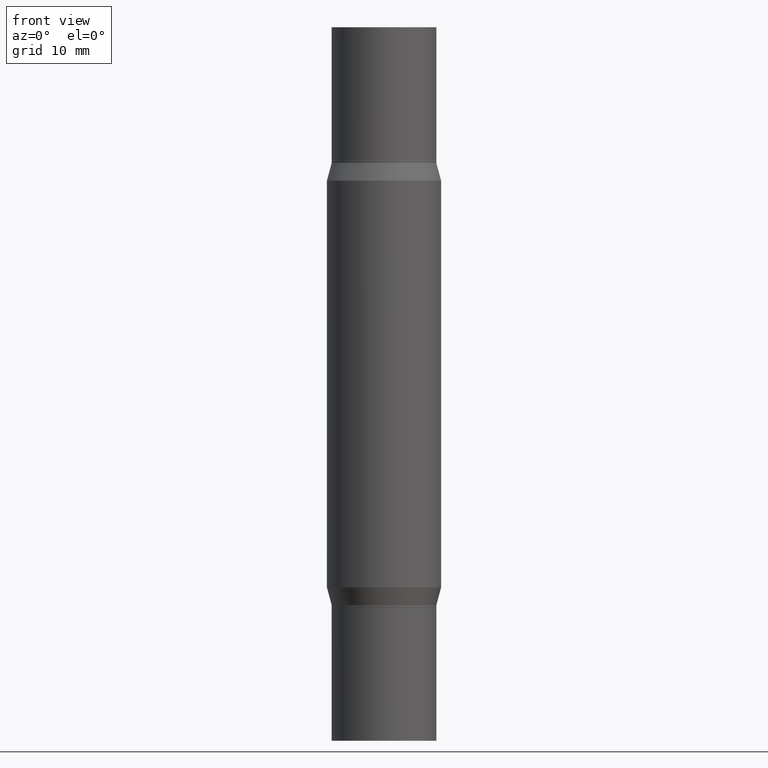
[diagram: clean part render]
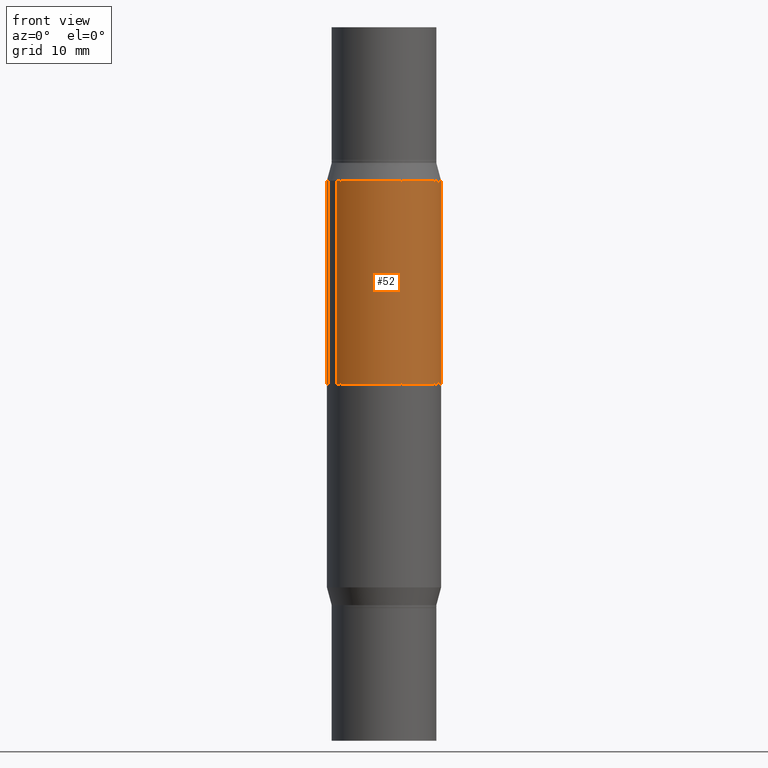
[diagram: same view with one face highlighted and labeled with its STEP entity id]
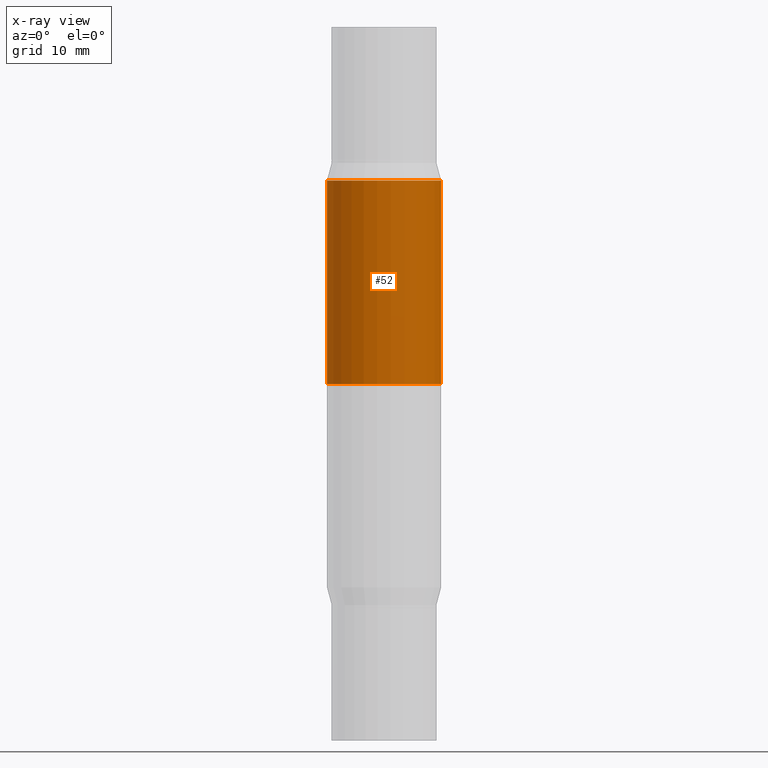
[diagram: x-ray of the same camera — body ghosted, the highlighted face saturated]
A machine part, front view. The second image highlights one B-rep face of the part: STEP entity #52.
The next image is the same camera in x-ray: the body ghosted, the highlighted face saturated — about 0% of this face is hidden behind the body in this view.
In plain terms, the highlighted cylindrical surface (partial cylindrical patch) has radius 5.9995 mm, axis along (-0, -0, -1).
Its self-contained STEP definition (entity closure, byte-faithful):
#18 = LINE ( 'NONE', #337, #890 ) ;
#23 = CARTESIAN_POINT ( 'NONE',  ( 0.2361999999999999933, -3.864569632810967459E-15, -0.6345347983687280591 ) ) ;
#52 = ADVANCED_FACE ( 'NONE', ( #822 ), #140, .T. ) ;
#71 = DIRECTION ( 'NONE',  ( -2.445468806185136597E-29, -3.491805094961124077E-15, -1.000000000000000000 ) ) ;
#140 = CYLINDRICAL_SURFACE ( 'NONE', #756, 0.2361999999999999933 ) ;
#155 = CARTESIAN_POINT ( 'NONE',  ( 0.000000000000000000, -1.031012409086862149E-14, -2.952799999999998981 ) ) ;
#158 = EDGE_CURVE ( 'NONE', #505, #570, #892, .T. ) ;
#165 = AXIS2_PLACEMENT_3D ( 'NONE', #919, #913, #179 ) ;
#179 = DIRECTION ( 'NONE',  ( 0.000000000000000000, 1.000000000000000000, -3.469747663417777397E-15 ) ) ;
#214 = CARTESIAN_POINT ( 'NONE',  ( 5.669245235053768865E-29, -2.215193848341470539E-15, -0.6345347983687280591 ) ) ;
#216 = VECTOR ( 'NONE', #678, 39.37007874015748143 ) ;
#282 = ORIENTED_EDGE ( 'NONE', *, *, #450, .F. ) ;
#314 = CARTESIAN_POINT ( 'NONE',  ( -0.2361999999999999933, -8.689674463794984831E-15, -2.952799999999998981 ) ) ;
#337 = CARTESIAN_POINT ( 'NONE',  ( 0.2361999999999999933, -1.195949987533811801E-14, -2.952799999999998981 ) ) ;
#339 = CARTESIAN_POINT ( 'NONE',  ( -0.2361999999999999933, -5.947442212678356578E-16, -0.6345347983687280591 ) ) ;
#406 = LINE ( 'NONE', #314, #216 ) ;
#449 = ORIENTED_EDGE ( 'NONE', *, *, #799, .F. ) ;
#450 = EDGE_CURVE ( 'NONE', #717, #836, #455, .T. ) ;
#455 = CIRCLE ( 'NONE', #165, 0.2361999999999999933 ) ;
#471 = ORIENTED_EDGE ( 'NONE', *, *, #899, .T. ) ;
#505 = VERTEX_POINT ( 'NONE', #339 ) ;
#514 = EDGE_LOOP ( 'NONE', ( #734, #471, #282, #449 ) ) ;
#549 = CARTESIAN_POINT ( 'NONE',  ( 0.2361999999999999933, -5.334384232974239652E-15, -1.476399999999999491 ) ) ;
#570 = VERTEX_POINT ( 'NONE', #23 ) ;
#603 = AXIS2_PLACEMENT_3D ( 'NONE', #214, #909, #702 ) ;
#627 = DIRECTION ( 'NONE',  ( -2.445468806185136877E-29, -3.491805094961123683E-15, -1.000000000000000000 ) ) ;
#642 = CARTESIAN_POINT ( 'NONE',  ( -0.2361999999999999933, -2.064558821431107654E-15, -1.476399999999999491 ) ) ;
#678 = DIRECTION ( 'NONE',  ( -2.445468806185136877E-29, -3.491805094961123683E-15, -1.000000000000000000 ) ) ;
#702 = DIRECTION ( 'NONE',  ( 1.000000000000000000, -6.982962677686266711E-15, 0.000000000000000000 ) ) ;
#717 = VERTEX_POINT ( 'NONE', #549 ) ;
#734 = ORIENTED_EDGE ( 'NONE', *, *, #158, .F. ) ;
#756 = AXIS2_PLACEMENT_3D ( 'NONE', #155, #71, #828 ) ;
#799 = EDGE_CURVE ( 'NONE', #570, #717, #18, .T. ) ;
#822 = FACE_OUTER_BOUND ( 'NONE', #514, .T. ) ;
#828 = DIRECTION ( 'NONE',  ( 1.000000000000000000, -6.982962677686265133E-15, 0.000000000000000000 ) ) ;
#836 = VERTEX_POINT ( 'NONE', #642 ) ;
#890 = VECTOR ( 'NONE', #627, 39.37007874015748143 ) ;
#892 = CIRCLE ( 'NONE', #603, 0.2361999999999999933 ) ;
#899 = EDGE_CURVE ( 'NONE', #505, #836, #406, .T. ) ;
#909 = DIRECTION ( 'NONE',  ( 2.445468806185136597E-29, 3.491805094961124077E-15, 1.000000000000000000 ) ) ;
#913 = DIRECTION ( 'NONE',  ( -0.000000000000000000, -3.491643216902134830E-15, -1.000000000000000000 ) ) ;
#919 = CARTESIAN_POINT ( 'NONE',  ( 3.610490145451734531E-29, -5.154823048668018475E-15, -1.476399999999999491 ) ) ;